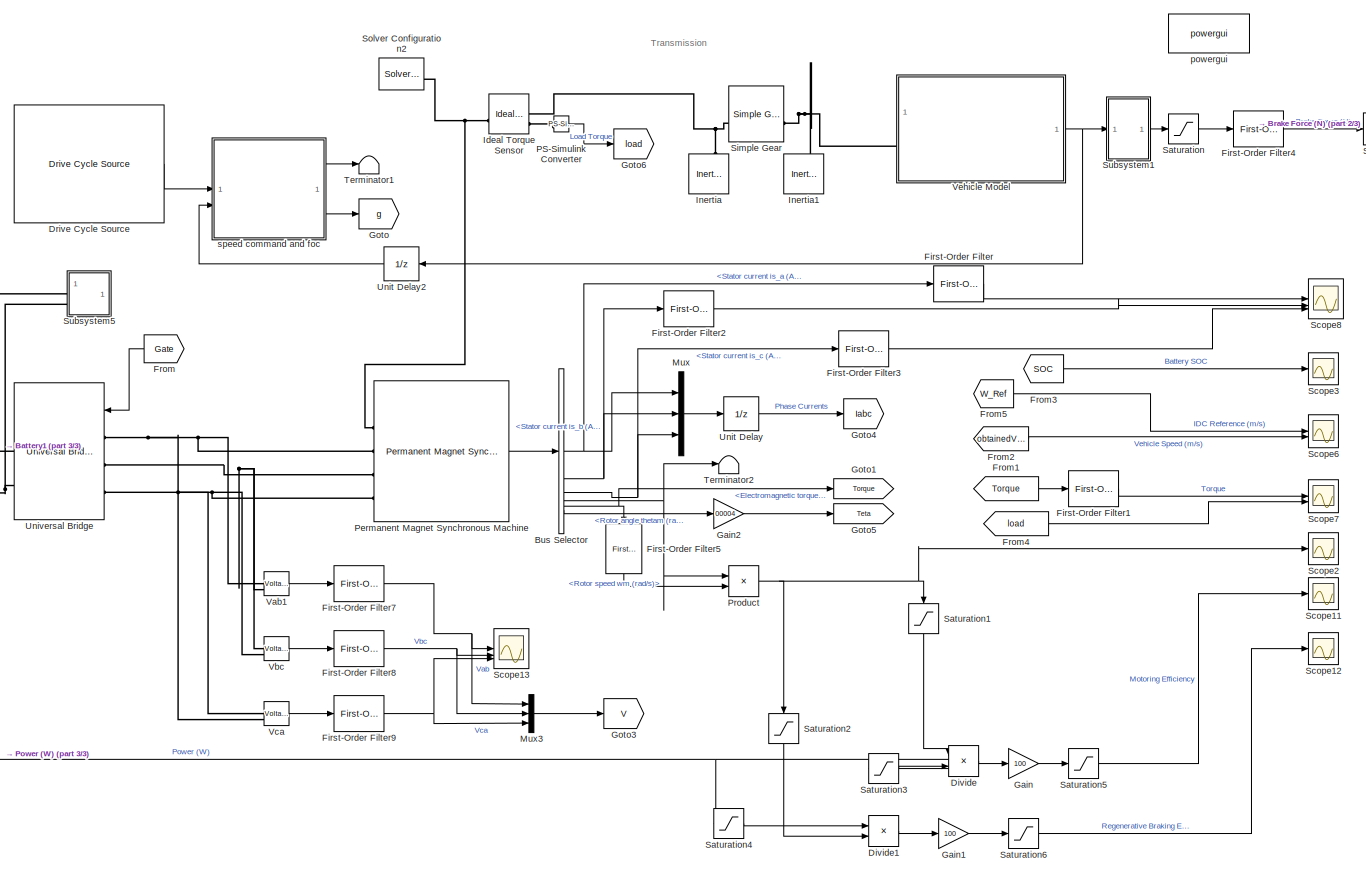
[diagram: root canvas - part 1/3, center side, full height]
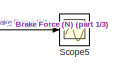
[diagram: root canvas - part 2/3, top right region]
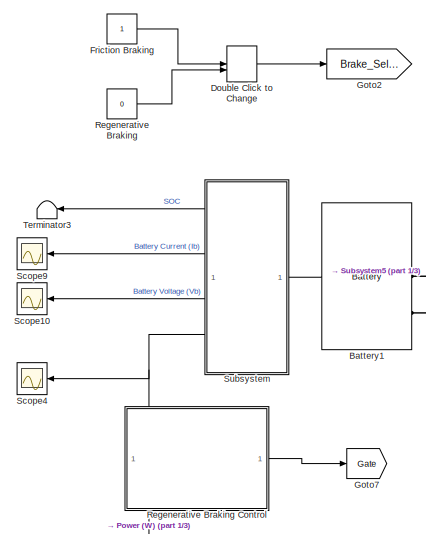
[diagram: root canvas - part 3/3, middle left region]
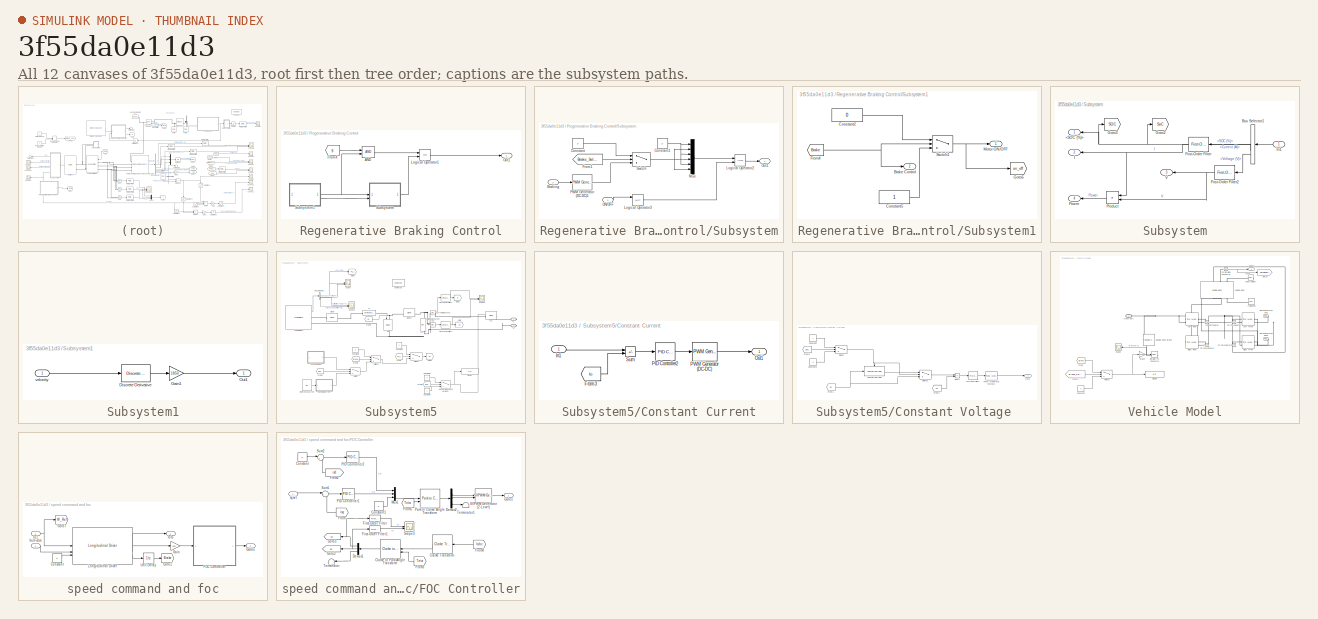
[diagram: thumbnail index - all 12 canvases of the model, root first then tree order]
MODEL slx_3f55da0e11d3
KIND model
CONFIG AbsTol = auto
CONFIG EnableMultiTasking = off
CONFIG FixedStep = auto
CONFIG MaxStep = auto
CONFIG MinStep = auto
CONFIG RelTol = 1e-3
CONFIG SampleTimeConstraint = Unconstrained
CONFIG SolverName = VariableStepAuto
CONFIG StartTime = 0.0
CONFIG StopTime = 135
BLOCK [Reference] Battery1  REF=spsBatteryLib/Battery
  SourceBlock = spsBatteryLib/Battery
  SourceType = Battery
BLOCK [BusSelector] Bus Selector
  OutputSignals = Stator current is_a (A),Stator current is_b (A),Stator current is_c (A),Rotor speed wm (rad/s),Electromagnetic torque Te (N*m),Rotor angle thetam (rad)
BLOCK [Product] Divide
  Inputs = */
BLOCK [Product] Divide1
  Inputs = */
BLOCK [ManualSwitch] Double Click to Change
BLOCK [Reference] Drive Cycle Source  REF=autolibshared/Drive Cycle Source
  AttributesFormatString = %<cycleVar> (%<tfinal>)
  LibrarySourceBlock = autolibscenario/Drive Cycle Source
  SourceBlock = autolibshared/Drive Cycle Source
  SourceType = Drive Cycle Source
BLOCK [Reference] First-Order Filter  REF=spsFirstOrderFilterLib/First-Order
Filter
  LibrarySourceBlock = sps_lib/Control/Filters/First-Order\nFilter
  SourceBlock = spsFirstOrderFilterLib/First-Order\nFilter
  SourceType = First-Order Filter
BLOCK [Reference] First-Order Filter1  REF=spsFirstOrderFilterLib/First-Order
Filter
  SourceBlock = spsFirstOrderFilterLib/First-Order\nFilter
  SourceType = First-Order Filter
BLOCK [Reference] First-Order Filter2  REF=spsFirstOrderFilterLib/First-Order
Filter
  LibrarySourceBlock = sps_lib/Control/Filters/First-Order\nFilter
  SourceBlock = spsFirstOrderFilterLib/First-Order\nFilter
  SourceType = First-Order Filter
BLOCK [Reference] First-Order Filter3  REF=spsFirstOrderFilterLib/First-Order
Filter
  LibrarySourceBlock = sps_lib/Control/Filters/First-Order\nFilter
  SourceBlock = spsFirstOrderFilterLib/First-Order\nFilter
  SourceType = First-Order Filter
BLOCK [Reference] First-Order Filter4  REF=spsFirstOrderFilterLib/First-Order
Filter
  LibrarySourceBlock = sps_lib/Control/Filters/First-Order\nFilter
  SourceBlock = spsFirstOrderFilterLib/First-Order\nFilter
  SourceType = First-Order Filter
BLOCK [Reference] First-Order Filter5  REF=spsFirstOrderFilterLib/First-Order
Filter
  LibrarySourceBlock = sps_lib/Control/Filters/First-Order\nFilter
  NameLocation = left
  SourceBlock = spsFirstOrderFilterLib/First-Order\nFilter
  SourceType = First-Order Filter
BLOCK [Reference] First-Order Filter7  REF=spsFirstOrderFilterLib/First-Order
Filter
  LibrarySourceBlock = sps_lib/Control/Filters/First-Order\nFilter
  SourceBlock = spsFirstOrderFilterLib/First-Order\nFilter
  SourceType = First-Order Filter
BLOCK [Reference] First-Order Filter8  REF=spsFirstOrderFilterLib/First-Order
Filter
  LibrarySourceBlock = sps_lib/Control/Filters/First-Order\nFilter
  SourceBlock = spsFirstOrderFilterLib/First-Order\nFilter
  SourceType = First-Order Filter
BLOCK [Reference] First-Order Filter9  REF=spsFirstOrderFilterLib/First-Order
Filter
  LibrarySourceBlock = sps_lib/Control/Filters/First-Order\nFilter
  SourceBlock = spsFirstOrderFilterLib/First-Order\nFilter
  SourceType = First-Order Filter
BLOCK [Constant] Friction Braking
BLOCK [From] From
  GotoTag = Gate
  TagVisibility = global
BLOCK [From] From1
  GotoTag = Torque
  TagVisibility = global
BLOCK [From] From2
  GotoTag = obtainedVel
  TagVisibility = global
BLOCK [From] From3
  GotoTag = SOC
  TagVisibility = global
BLOCK [From] From4
  GotoTag = load
BLOCK [From] From5
  GotoTag = W_Ref
  TagVisibility = global
BLOCK [Gain] Gain
  Gain = 100
BLOCK [Gain] Gain1
  Gain = 100
BLOCK [Gain] Gain2
  Gain = 00004
BLOCK [Goto] Goto
  GotoTag = g
  TagVisibility = global
BLOCK [Goto] Goto1
  GotoTag = Torque
  TagVisibility = global
BLOCK [Goto] Goto2
  GotoTag = Brake_Selector
  TagVisibility = global
BLOCK [Goto] Goto3
  GotoTag = V
  NameLocation = top
  TagVisibility = global
BLOCK [Goto] Goto4
  GotoTag = Iabc
  TagVisibility = global
BLOCK [Goto] Goto5
  GotoTag = Teta
  TagVisibility = global
BLOCK [Goto] Goto6
  GotoTag = load
BLOCK [Goto] Goto7
  GotoTag = Gate
  TagVisibility = global
BLOCK [Reference] Ideal Torque Sensor  REF=fl_lib/Mechanical/Mechanical Sensors/Ideal Torque Sensor
  SourceBlock = fl_lib/Mechanical/Mechanical Sensors/Ideal Torque Sensor
  SourceType = Ideal Torque Sensor
BLOCK [Reference] Inertia  REF=fl_lib/Mechanical/Rotational Elements/Inertia
  NameLocation = right
  SourceBlock = fl_lib/Mechanical/Rotational Elements/Inertia
  SourceType = Inertia
BLOCK [Reference] Inertia1  REF=fl_lib/Mechanical/Rotational Elements/Inertia
  NameLocation = right
  SourceBlock = fl_lib/Mechanical/Rotational Elements/Inertia
  SourceType = Inertia
BLOCK [Mux] Mux
  DisplayOption = bar
  Inputs = 3
BLOCK [Mux] Mux3
  DisplayOption = bar
  Inputs = 3
BLOCK [Reference] PS-Simulink Converter  REF=nesl_utility/PS-Simulink
Converter
  SourceBlock = nesl_utility/PS-Simulink\nConverter
  SourceType = PS-Simulink\nConverter
BLOCK [Reference] Permanent Magnet Synchronous Machine  REF=spsPermanentMagnetSynchronousMachineLib/Permanent Magnet
Synchronous Machine
  SourceBlock = spsPermanentMagnetSynchronousMachineLib/Permanent Magnet\nSynchronous Machine
  SourceType = Permanent Magnet Synchronous Machine
BLOCK [Product] Product
BLOCK [Constant] Regenerative Braking
  Value = 0
BLOCK [SubSystem] Regenerative Braking Control
BLOCK [Logic] Regenerative Braking Control/AND
  AllPortsSameDT = off
  IconShape = distinctive
  OutDataTypeStr = boolean
BLOCK [From] Regenerative Braking Control/From4
  GotoTag = g
  TagVisibility = global
BLOCK [Logic] Regenerative Braking Control/Logical Operator1
  AllPortsSameDT = off
  Operator = OR
  OutDataTypeStr = boolean
BLOCK [Outport] Regenerative Braking Control/Out1
BLOCK [SubSystem] Regenerative Braking Control/Subsystem
BLOCK [Inport] Regenerative Braking Control/Subsystem/Braking
  NameLocation = top
  Port = 2
BLOCK [Constant] Regenerative Braking Control/Subsystem/Constant
  Value = 0
BLOCK [Constant] Regenerative Braking Control/Subsystem/Constant1
  Value = 0
BLOCK [From] Regenerative Braking Control/Subsystem/From1
  GotoTag = Brake_Selector
  TagVisibility = global
BLOCK [Logic] Regenerative Braking Control/Subsystem/Logical Operator2
  AllPortsSameDT = off
  OutDataTypeStr = boolean
BLOCK [Logic] Regenerative Braking Control/Subsystem/Logical Operator3
  AllPortsSameDT = off
  Inputs = 3
  Operator = NOT
  OutDataTypeStr = boolean
BLOCK [Mux] Regenerative Braking Control/Subsystem/Mux
  DisplayOption = bar
  Inputs = 6
BLOCK [Inport] Regenerative Braking Control/Subsystem/ON//OFF
  NameLocation = top
BLOCK [Outport] Regenerative Braking Control/Subsystem/Out1
BLOCK [Reference] Regenerative Braking Control/Subsystem/PWM Generator (DC-DC)1  REF=spsPWMGeneratorDCDCLib/PWM Generator
(DC-DC)
  LibrarySourceBlock = sps_lib/Power Electronics/Power Electronics Control/PWM Generator\n(DC-DC)
  SourceBlock = spsPWMGeneratorDCDCLib/PWM Generator\n(DC-DC)
  SourceType = PWM Generator (DC-DC)
BLOCK [Switch] Regenerative Braking Control/Subsystem/Switch
  Criteria = u2 > Threshold
  InputSameDT = off
  SaturateOnIntegerOverflow = off
BLOCK [SubSystem] Regenerative Braking Control/Subsystem1
BLOCK [Outport] Regenerative Braking Control/Subsystem1/Brake Control
  Port = 2
  VectorParamsAs1DForOutWhenUnconnected = off
BLOCK [Constant] Regenerative Braking Control/Subsystem1/Constant2
  Value = 0
BLOCK [Constant] Regenerative Braking Control/Subsystem1/Constant5
BLOCK [From] Regenerative Braking Control/Subsystem1/From4
  GotoTag = Brake
  TagVisibility = global
BLOCK [Goto] Regenerative Braking Control/Subsystem1/Goto6
  GotoTag = on_off
  NameLocation = top
  TagVisibility = global
BLOCK [Outport] Regenerative Braking Control/Subsystem1/Motor ON//OFF
  VectorParamsAs1DForOutWhenUnconnected = off
BLOCK [Switch] Regenerative Braking Control/Subsystem1/Switch1
  Criteria = u2 > Threshold
  InputSameDT = off
  SaturateOnIntegerOverflow = off
BLOCK [Saturate] Saturation
  LowerLimit = -10000
  UpperLimit = 0
BLOCK [Saturate] Saturation1
  LowerLimit = 0
  NameLocation = left
  UpperLimit = inf
BLOCK [Saturate] Saturation2
  LowerLimit = -inf
  NameLocation = left
  UpperLimit = 0
BLOCK [Saturate] Saturation3
  LowerLimit = 0
  UpperLimit = inf
BLOCK [Saturate] Saturation4
  LowerLimit = -inf
  UpperLimit = 0
BLOCK [Saturate] Saturation5
  LowerLimit = 0
  UpperLimit = 97.6
BLOCK [Saturate] Saturation6
  LowerLimit = 0
  UpperLimit = 98
BLOCK [Scope] Scope10
  Floating = off
  NumInputPorts = 1
  ScopeSpecificationString = Simulink.scopes.TimeScopeBlockCfg('CurrentConfiguration', extmgr.ConfigurationSet(extmgr.Configuration('Core','General UI',true,'FigureColor',[1 1 1]),extmgr.Configuration('Core','Source UI',true),extmgr.Configuration('Sources','WiredSimulink',true,'DataLoggingVariableName','ScopeData8','SampleTime','0.001'),extmgr.Configuration('Visuals','Time Domain',true,'SerializedDisplays',{struct('MinYLimRea...<+1677ch>
BLOCK [Scope] Scope11
  Floating = off
  NameLocation = top
  NumInputPorts = 1
  ScopeSpecificationString = Simulink.scopes.TimeScopeBlockCfg('CurrentConfiguration', extmgr.ConfigurationSet(extmgr.Configuration('Core','General UI',true,'FigureColor',[1 1 1]),extmgr.Configuration('Core','Source UI',true),extmgr.Configuration('Sources','WiredSimulink',true,'DataLoggingVariableName','ScopeData2','SampleTime','0.001'),extmgr.Configuration('Visuals','Time Domain',true,'SerializedDisplays',{struct('MinYLimRea...<+1686ch>
BLOCK [Scope] Scope12
  Floating = off
  NameLocation = top
  NumInputPorts = 1
  ScopeSpecificationString = Simulink.scopes.TimeScopeBlockCfg('CurrentConfiguration', extmgr.ConfigurationSet(extmgr.Configuration('Core','General UI',true,'FigureColor',[1 1 1]),extmgr.Configuration('Core','Source UI',true),extmgr.Configuration('Sources','WiredSimulink',true,'DataLoggingVariableName','ScopeData3','SampleTime','0.001'),extmgr.Configuration('Visuals','Time Domain',true,'SerializedDisplays',{struct('MinYLimRea...<+1688ch>
BLOCK [Scope] Scope13
  Floating = off
  NumInputPorts = 3
  ScopeSpecificationString = Simulink.scopes.TimeScopeBlockCfg('CurrentConfiguration', extmgr.ConfigurationSet(extmgr.Configuration('Core','General UI',true,'FigureColor',[1 1 1]),extmgr.Configuration('Core','Source UI',true),extmgr.Configuration('Sources','WiredSimulink',true,'DataLoggingVariableName','ScopeData1','SampleTime','0.001'),extmgr.Configuration('Visuals','Time Domain',true,'SerializedDisplays',{struct('MinYLimRea...<+3131ch>
BLOCK [Scope] Scope2
  Floating = off
  NameLocation = top
  NumInputPorts = 1
  ScopeSpecificationString = Simulink.scopes.TimeScopeBlockCfg('CurrentConfiguration', extmgr.ConfigurationSet(extmgr.Configuration('Core','General UI',true,'FigureColor',[1 1 1]),extmgr.Configuration('Core','Source UI',true),extmgr.Configuration('Sources','WiredSimulink',true,'DataLoggingVariableName','ScopeData1','SampleTime','0.001'),extmgr.Configuration('Visuals','Time Domain',true,'SerializedDisplays',{struct('MinYLimRea...<+1605ch>
BLOCK [Scope] Scope3
  Floating = off
  NumInputPorts = 1
  ScopeSpecificationString = Simulink.scopes.TimeScopeBlockCfg('CurrentConfiguration', extmgr.ConfigurationSet(extmgr.Configuration('Core','General UI',true,'FigureColor',[1 1 1]),extmgr.Configuration('Core','Source UI',true),extmgr.Configuration('Sources','WiredSimulink',true,'DataLoggingVariableName','ScopeData2','SampleTime','0.001'),extmgr.Configuration('Visuals','Time Domain',true,'SerializedDisplays',{struct('MinYLimRea...<+1645ch>
BLOCK [Scope] Scope4
  Floating = off
  NumInputPorts = 1
  ScopeSpecificationString = Simulink.scopes.TimeScopeBlockCfg('CurrentConfiguration', extmgr.ConfigurationSet(extmgr.Configuration('Core','General UI',true,'FigureColor',[1 1 1]),extmgr.Configuration('Core','Source UI',true),extmgr.Configuration('Sources','WiredSimulink',true,'DataLoggingVariableName','ScopeData2'),extmgr.Configuration('Visuals','Time Domain',true,'SerializedDisplays',{struct('MinYLimReal','-11069.70452','Ma...<+1606ch>
BLOCK [Scope] Scope5
  Floating = off
  NumInputPorts = 1
  ScopeSpecificationString = Simulink.scopes.TimeScopeBlockCfg('CurrentConfiguration', extmgr.ConfigurationSet(extmgr.Configuration('Core','General UI',true,'FigureColor',[1 1 1]),extmgr.Configuration('Core','Source UI',true),extmgr.Configuration('Sources','WiredSimulink',true,'DataLoggingVariableName','ScopeData1','SampleTime','0.001'),extmgr.Configuration('Visuals','Time Domain',true,'SerializedDisplays',{struct('MinYLimRea...<+1601ch>
BLOCK [Scope] Scope6
  Floating = off
  NumInputPorts = 2
  ScopeSpecificationString = Simulink.scopes.TimeScopeBlockCfg('CurrentConfiguration', extmgr.ConfigurationSet(extmgr.Configuration('Core','General UI',true,'FigureColor',[1 1 1]),extmgr.Configuration('Core','Source UI',true),extmgr.Configuration('Sources','WiredSimulink',true,'DataLoggingVariableName','ScopeData3','SampleTime','0.001'),extmgr.Configuration('Visuals','Time Domain',true,'SerializedDisplays',{struct('MinYLimRea...<+1781ch>
BLOCK [Scope] Scope7
  Floating = off
  NumInputPorts = 2
  ScopeSpecificationString = Simulink.scopes.TimeScopeBlockCfg('CurrentConfiguration', extmgr.ConfigurationSet(extmgr.Configuration('Core','General UI',true,'FigureColor',[1 1 1]),extmgr.Configuration('Core','Source UI',true),extmgr.Configuration('Sources','WiredSimulink',true,'DataLoggingVariableName','ScopeData4','SampleTime','0.001'),extmgr.Configuration('Visuals','Time Domain',true,'SerializedDisplays',{struct('MinYLimRea...<+2501ch>
BLOCK [Scope] Scope8
  Floating = off
  NumInputPorts = 3
  ScopeSpecificationString = Simulink.scopes.TimeScopeBlockCfg('CurrentConfiguration', extmgr.ConfigurationSet(extmgr.Configuration('Core','General UI',true,'FigureColor',[1 1 1]),extmgr.Configuration('Core','Source UI',true),extmgr.Configuration('Sources','WiredSimulink',true,'DataLoggingVariableName','ScopeData5','SampleTime','0.001'),extmgr.Configuration('Visuals','Time Domain',true,'SerializedDisplays',{struct('MinYLimRea...<+3165ch>
BLOCK [Scope] Scope9
  Floating = off
  NumInputPorts = 1
  ScopeSpecificationString = Simulink.scopes.TimeScopeBlockCfg('CurrentConfiguration', extmgr.ConfigurationSet(extmgr.Configuration('Core','General UI',true,'FigureColor',[1 1 1]),extmgr.Configuration('Core','Source UI',true),extmgr.Configuration('Sources','WiredSimulink',true,'DataLoggingVariableName','ScopeData1','SampleTime','0.001'),extmgr.Configuration('Visuals','Time Domain',true,'SerializedDisplays',{struct('MinYLimRea...<+1687ch>
BLOCK [Reference] Simple Gear  REF=sdl_lib/Gears/Simple Gear
  SourceBlock = sdl_lib/Gears/Simple Gear
  SourceType = Simple Gear
BLOCK [Reference] Solver Configuration2  REF=nesl_utility/Solver
Configuration
  SourceBlock = nesl_utility/Solver\nConfiguration
  SourceType = Solver\nConfiguration
BLOCK [SubSystem] Subsystem
  PortSchema = {"entries":[{"content":{"sides":[{"content":{"connectorIds":["Out1","Out2","Out3","Out4"]},"type":"ConnectorPlacement.EquallySpacedRectSide","uuid":"27c1b33d-e0e1-4e5c-8dd4-1ab97e6f711d"},{"content":{"connectorIds":["In1"],"side":"RIGHT"},"type":"ConnectorPlacement.EquallySpacedRectSide","uuid":"f667a61e-e82c-43f5-b62b-8aef73abd33b"},{"content":{"connectorIds":[],"side":"TOP"},"type":"ConnectorPla...<+261ch>
BLOCK [Outport] Subsystem/<SOC (%)>
BLOCK [BusSelector] Subsystem/Bus Selector1
  OutputSignals = SOC (%),Current (A),Voltage (V)
BLOCK [Reference] Subsystem/First-Order Filter  REF=spsFirstOrderFilterLib/First-Order
Filter
  SourceBlock = spsFirstOrderFilterLib/First-Order\nFilter
  SourceType = First-Order Filter
BLOCK [Reference] Subsystem/First-Order Filter2  REF=spsFirstOrderFilterLib/First-Order
Filter
  SourceBlock = spsFirstOrderFilterLib/First-Order\nFilter
  SourceType = First-Order Filter
BLOCK [Goto] Subsystem/Goto2
  GotoTag = SoC
  TagVisibility = global
BLOCK [Goto] Subsystem/Goto3
  GotoTag = SOC
  NameLocation = top
  TagVisibility = global
BLOCK [Outport] Subsystem/I
  Port = 2
BLOCK [Inport] Subsystem/In1
BLOCK [Outport] Subsystem/Power
  Port = 4
BLOCK [Product] Subsystem/Product
BLOCK [Outport] Subsystem/V
  Port = 3
BLOCK [SubSystem] Subsystem1
BLOCK [Reference] Subsystem1/Discrete Derivative  REF=simulink/Discrete/Discrete Derivative
  SourceBlock = simulink/Discrete/Discrete Derivative
  SourceType = Discrete Derivative
BLOCK [Gain] Subsystem1/Gain1
  Gain = 1850
BLOCK [Outport] Subsystem1/Out1
BLOCK [Inport] Subsystem1/velocity
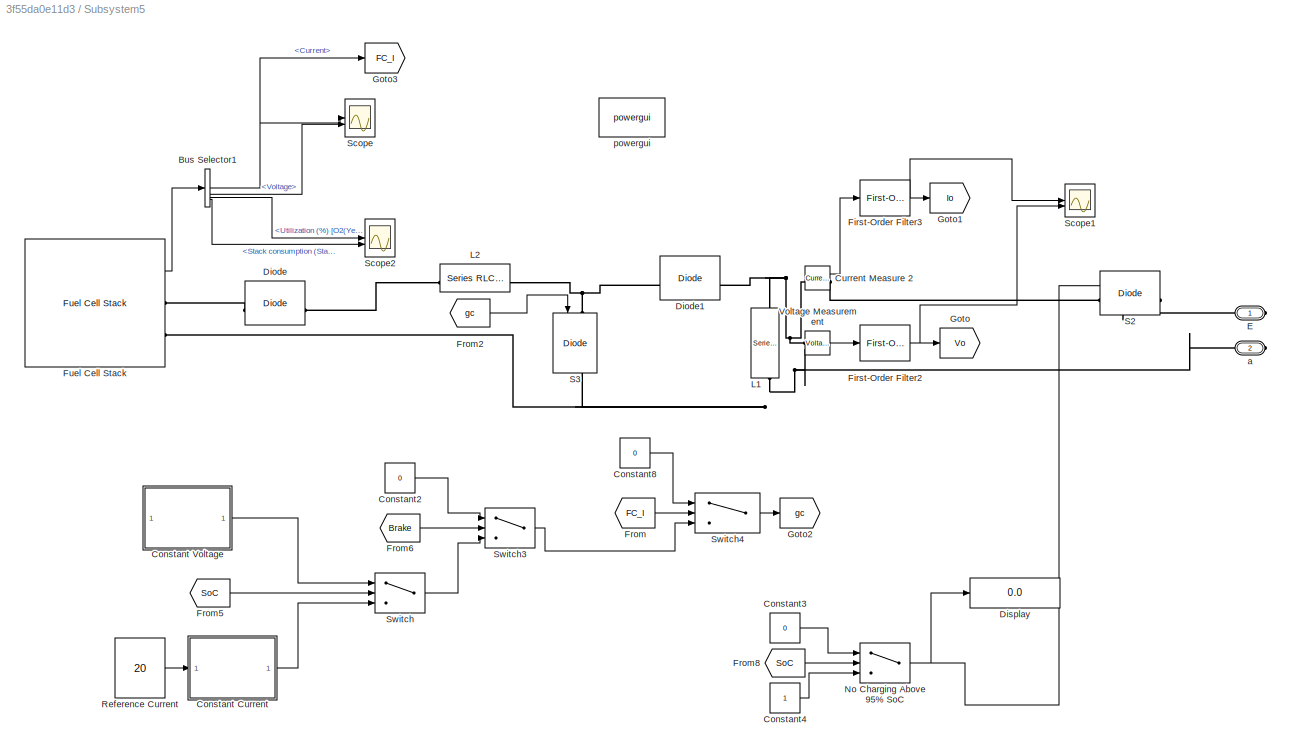
BLOCK [SubSystem] Subsystem5
BLOCK [BusSelector] Subsystem5/Bus Selector1
  OutputSignals = Current,Voltage,Utilization (%) [O2(Yellow); H2(Magenta)],Stack consumption (Standard lpm) [Air(Yellow); Fuel(Magenta)]
BLOCK [SubSystem] Subsystem5/Constant Current
BLOCK [From] Subsystem5/Constant Current/From3
  GotoTag = Io
  TagVisibility = global
BLOCK [Inport] Subsystem5/Constant Current/In1
BLOCK [Outport] Subsystem5/Constant Current/Out1
  VectorParamsAs1DForOutWhenUnconnected = off
BLOCK [Reference] Subsystem5/Constant Current/PID Controller2  REF=slpidlib/PID Controller
  SourceBlock = slpidlib/PID Controller
  SourceType = PID 1dof
BLOCK [Reference] Subsystem5/Constant Current/PWM Generator (DC-DC)  REF=spsPWMGeneratorDCDCLib/PWM Generator
(DC-DC)
  SourceBlock = spsPWMGeneratorDCDCLib/PWM Generator\n(DC-DC)
  SourceType = PWM Generator (DC-DC)
BLOCK [Sum] Subsystem5/Constant Current/Sum
  IconShape = rectangular
  Inputs = +-
BLOCK [SubSystem] Subsystem5/Constant Voltage 
BLOCK [Constant] Subsystem5/Constant Voltage /Constant
BLOCK [Constant] Subsystem5/Constant Voltage /Constant2
  Value = 0
BLOCK [From] Subsystem5/Constant Voltage /From1
  GotoTag = Vo
  TagVisibility = global
BLOCK [From] Subsystem5/Constant Voltage /From2
  GotoTag = SoC
  TagVisibility = global
BLOCK [From] Subsystem5/Constant Voltage /From4
  GotoTag = Vo
  TagVisibility = global
BLOCK [Outport] Subsystem5/Constant Voltage /Out1
  VectorParamsAs1DForOutWhenUnconnected = off
BLOCK [Reference] Subsystem5/Constant Voltage /PID Controller1  REF=slpidlib/PID Controller
  SourceBlock = slpidlib/PID Controller
  SourceType = PID 1dof
BLOCK [Reference] Subsystem5/Constant Voltage /PWM Generator (DC-DC)1  REF=spsPWMGeneratorDCDCLib/PWM Generator
(DC-DC)
  SourceBlock = spsPWMGeneratorDCDCLib/PWM Generator\n(DC-DC)
  SourceType = PWM Generator (DC-DC)
BLOCK [Reference] Subsystem5/Constant Voltage /Sample and Hold  REF=dspsigops/Sample
and Hold
  SourceBlock = dspsigops/Sample\nand Hold
  SourceType = Sample and Hold
BLOCK [Sum] Subsystem5/Constant Voltage /Sum1
  IconShape = rectangular
  Inputs = +-
BLOCK [Switch] Subsystem5/Constant Voltage /Switch
  Criteria = u2 > Threshold
  InputSameDT = off
  SaturateOnIntegerOverflow = off
  Threshold = 90
BLOCK [Switch] Subsystem5/Constant Voltage /Switch1
  Criteria = u2 > Threshold
  InputSameDT = off
  SaturateOnIntegerOverflow = off
BLOCK [Constant] Subsystem5/Constant2
  Value = 0
BLOCK [Constant] Subsystem5/Constant3
  Value = 0
BLOCK [Constant] Subsystem5/Constant4
BLOCK [Constant] Subsystem5/Constant8
  Value = 0
BLOCK [Reference] Subsystem5/Current Measure 2  REF=spsCurrentMeasurementLib/Current Measurement
  SourceBlock = spsCurrentMeasurementLib/Current Measurement
  SourceType = Current Measurement
BLOCK [Reference] Subsystem5/Diode  REF=spsDiodeLib/Diode
  LibrarySourceBlock = sps_lib/Power Electronics/Diode
  SourceBlock = spsDiodeLib/Diode
  SourceType = Diode
BLOCK [Reference] Subsystem5/Diode1  REF=spsDiodeLib/Diode
  LibrarySourceBlock = sps_lib/Power Electronics/Diode
  SourceBlock = spsDiodeLib/Diode
  SourceType = Diode
BLOCK [Display] Subsystem5/Display
  Decimation = 1
BLOCK [PMIOPort] Subsystem5/E
  Side = Right
BLOCK [Reference] Subsystem5/First-Order Filter2  REF=spsFirstOrderFilterLib/First-Order
Filter
  SourceBlock = spsFirstOrderFilterLib/First-Order\nFilter
  SourceType = First-Order Filter
BLOCK [Reference] Subsystem5/First-Order Filter3  REF=spsFirstOrderFilterLib/First-Order
Filter
  SourceBlock = spsFirstOrderFilterLib/First-Order\nFilter
  SourceType = First-Order Filter
BLOCK [From] Subsystem5/From
  GotoTag = FC_I
  TagVisibility = global
BLOCK [From] Subsystem5/From2
  GotoTag = gc
  TagVisibility = global
BLOCK [From] Subsystem5/From5
  GotoTag = SoC
  TagVisibility = global
BLOCK [From] Subsystem5/From6
  GotoTag = Brake
  TagVisibility = global
BLOCK [From] Subsystem5/From8
  GotoTag = SoC
  TagVisibility = global
BLOCK [Reference] Subsystem5/Fuel Cell Stack  REF=spsFuelCellStackLib/Fuel Cell Stack
  LibrarySourceBlock = sps_lib/Sources/Fuel Cell Stack
  SourceBlock = spsFuelCellStackLib/Fuel Cell Stack
  SourceType = Fuel Cell Stack
BLOCK [Goto] Subsystem5/Goto
  GotoTag = Vo
  TagVisibility = global
BLOCK [Goto] Subsystem5/Goto1
  GotoTag = Io
  TagVisibility = global
BLOCK [Goto] Subsystem5/Goto2
  GotoTag = gc
  TagVisibility = global
BLOCK [Goto] Subsystem5/Goto3
  GotoTag = FC_I
  TagVisibility = global
BLOCK [Reference] Subsystem5/L1  REF=spsSeriesRLCBranchLib/Series RLC Branch
  NameLocation = left
  SourceBlock = spsSeriesRLCBranchLib/Series RLC Branch
  SourceType = Series RLC Branch
BLOCK [Reference] Subsystem5/L2  REF=spsSeriesRLCBranchLib/Series RLC Branch
  SourceBlock = spsSeriesRLCBranchLib/Series RLC Branch
  SourceType = Series RLC Branch
BLOCK [Switch] Subsystem5/No Charging Above 95% SoC
  Criteria = u2 > Threshold
  InputSameDT = off
  SaturateOnIntegerOverflow = off
  Threshold = 95
BLOCK [Constant] Subsystem5/Reference Current
  Value = 20
BLOCK [Reference] Subsystem5/S2  REF=spsIGBTDiodeLib/IGBT//Diode
  SourceBlock = spsIGBTDiodeLib/IGBT//Diode
  SourceType = IGBT/Diode
BLOCK [Reference] Subsystem5/S3  REF=spsIGBTDiodeLib/IGBT//Diode
  NameLocation = left
  SourceBlock = spsIGBTDiodeLib/IGBT//Diode
  SourceType = IGBT/Diode
BLOCK [Scope] Subsystem5/Scope
  Floating = off
  NumInputPorts = 2
  ScopeSpecificationString = Simulink.scopes.TimeScopeBlockCfg('CurrentConfiguration', extmgr.ConfigurationSet(extmgr.Configuration('Core','General UI',true),extmgr.Configuration('Core','Source UI',true),extmgr.Configuration('Sources','WiredSimulink',true,'DataLoggingVariableName','ScopeData1','SampleTime','0.001'),extmgr.Configuration('Visuals','Time Domain',true,'SerializedDisplays',{struct('MinYLimReal','-50.43701','MaxYLi...<+2016ch>
BLOCK [Scope] Subsystem5/Scope1
  Floating = off
  NumInputPorts = 2
  ScopeSpecificationString = Simulink.scopes.TimeScopeBlockCfg('CurrentConfiguration', extmgr.ConfigurationSet(extmgr.Configuration('Core','General UI',true),extmgr.Configuration('Core','Source UI',true),extmgr.Configuration('Sources','WiredSimulink',true,'DataLoggingVariableName','ScopeData1','SampleTime','0.001'),extmgr.Configuration('Visuals','Time Domain',true,'SerializedDisplays',{struct('MinYLimReal','-21.1211','MaxYLim...<+2025ch>
BLOCK [Scope] Subsystem5/Scope2
  Floating = off
  NumInputPorts = 2
  ScopeSpecificationString = Simulink.scopes.TimeScopeBlockCfg('CurrentConfiguration', extmgr.ConfigurationSet(extmgr.Configuration('Core','General UI',true),extmgr.Configuration('Core','Source UI',true),extmgr.Configuration('Sources','WiredSimulink',true,'DataLoggingVariableName','ScopeData1','SampleTime','0.001'),extmgr.Configuration('Visuals','Time Domain',true,'SerializedDisplays',{struct('MinYLimReal','-50.43701','MaxYLi...<+2009ch>
BLOCK [Switch] Subsystem5/Switch
  Criteria = u2 > Threshold
  InputSameDT = off
  SaturateOnIntegerOverflow = off
  Threshold = 90
BLOCK [Switch] Subsystem5/Switch3
  Criteria = u2 > Threshold
  InputSameDT = off
  SaturateOnIntegerOverflow = off
BLOCK [Switch] Subsystem5/Switch4
  Criteria = u2 > Threshold
  InputSameDT = off
  SaturateOnIntegerOverflow = off
  Threshold = 400
BLOCK [Reference] Subsystem5/Voltage Measurement  REF=spsVoltageMeasurementLib/Voltage Measurement
  SourceBlock = spsVoltageMeasurementLib/Voltage Measurement
  SourceType = Voltage Measurement
  UserDataPersistent = on
BLOCK [PMIOPort] Subsystem5/a
  Port = 2
  Side = Right
BLOCK [Reference] Subsystem5/powergui  REF=spspowerguiLib/powergui
  Priority = 1
  SourceBlock = spspowerguiLib/powergui
  SourceType = PSB option menu block
BLOCK [Terminator] Terminator1
  NameLocation = top
BLOCK [Terminator] Terminator2
  NameLocation = top
BLOCK [Terminator] Terminator3
  NameLocation = top
BLOCK [UnitDelay] Unit Delay
  HasFrameUpgradeWarning = on
  SampleTime = -1
BLOCK [UnitDelay] Unit Delay2
  HasFrameUpgradeWarning = on
  SampleTime = -1
BLOCK [Reference] Universal Bridge  REF=spsUniversalBridgeLib/Universal Bridge
  SourceBlock = spsUniversalBridgeLib/Universal Bridge
  SourceType = Universal Bridge
BLOCK [Reference] Vab1  REF=spsVoltageMeasurementLib/Voltage Measurement
  SourceBlock = spsVoltageMeasurementLib/Voltage Measurement
  SourceType = Voltage Measurement
  UserDataPersistent = on
BLOCK [Reference] Vbc  REF=spsVoltageMeasurementLib/Voltage Measurement
  SourceBlock = spsVoltageMeasurementLib/Voltage Measurement
  SourceType = Voltage Measurement
  UserDataPersistent = on
BLOCK [Reference] Vca  REF=spsVoltageMeasurementLib/Voltage Measurement
  SourceBlock = spsVoltageMeasurementLib/Voltage Measurement
  SourceType = Voltage Measurement
  UserDataPersistent = on
BLOCK [SubSystem] Vehicle Model
BLOCK [Gain] Vehicle Model/Brake
  Gain = 10000
  NameLocation = top
BLOCK [Constant] Vehicle Model/Constant
  Value = 0
BLOCK [Display] Vehicle Model/Display
  Decimation = 1
BLOCK [Reference] Vehicle Model/Double-Shoe Brake  REF=sdl_lib/Brakes & Detents/Rotational/Double-Shoe Brake
  SourceBlock = sdl_lib/Brakes & Detents/Rotational/Double-Shoe Brake
  SourceType = Double-Shoe Brake
BLOCK [From] Vehicle Model/From
  GotoTag = Brake
  TagVisibility = global
BLOCK [From] Vehicle Model/From1
  GotoTag = Brake_Selector
  TagVisibility = global
BLOCK [Goto] Vehicle Model/Goto1
  GotoTag = obtainedVel
  TagVisibility = global
BLOCK [Reference] Vehicle Model/Inclination  REF=fl_lib/Physical Signals/Sources/PS Constant
  SourceBlock = fl_lib/Physical Signals/Sources/PS Constant
  SourceType = PS Constant
BLOCK [Reference] Vehicle Model/Left Front  REF=sdl_lib/Tires & Vehicles/Tire (Magic Formula)
  NameLocation = top
  SourceBlock = sdl_lib/Tires & Vehicles/Tire (Magic Formula)
  SourceType = Tire (Magic Formula)
BLOCK [Reference] Vehicle Model/Left Rear  REF=sdl_lib/Tires & Vehicles/Tire (Magic Formula)
  SourceBlock = sdl_lib/Tires & Vehicles/Tire (Magic Formula)
  SourceType = Tire (Magic Formula)
BLOCK [Reference] Vehicle Model/PS Terminator  REF=fl_lib/Physical Signals/Sinks/PS Terminator
  SourceBlock = fl_lib/Physical Signals/Sinks/PS Terminator
  SourceType = PS Terminator
BLOCK [Reference] Vehicle Model/PS Terminator1  REF=fl_lib/Physical Signals/Sinks/PS Terminator
  SourceBlock = fl_lib/Physical Signals/Sinks/PS Terminator
  SourceType = PS Terminator
BLOCK [Reference] Vehicle Model/PS Terminator2  REF=fl_lib/Physical Signals/Sinks/PS Terminator
  NameLocation = top
  SourceBlock = fl_lib/Physical Signals/Sinks/PS Terminator
  SourceType = PS Terminator
BLOCK [Reference] Vehicle Model/PS Terminator3  REF=fl_lib/Physical Signals/Sinks/PS Terminator
  NameLocation = top
  SourceBlock = fl_lib/Physical Signals/Sinks/PS Terminator
  SourceType = PS Terminator
BLOCK [Reference] Vehicle Model/PS-Simulink Converter  REF=nesl_utility/PS-Simulink
Converter
  SourceBlock = nesl_utility/PS-Simulink\nConverter
  SourceType = PS-Simulink\nConverter
BLOCK [Reference] Vehicle Model/Right Front  REF=sdl_lib/Tires & Vehicles/Tire (Magic Formula)
  NameLocation = top
  SourceBlock = sdl_lib/Tires & Vehicles/Tire (Magic Formula)
  SourceType = Tire (Magic Formula)
BLOCK [Reference] Vehicle Model/Right Rear  REF=sdl_lib/Tires & Vehicles/Tire (Magic Formula)
  SourceBlock = sdl_lib/Tires & Vehicles/Tire (Magic Formula)
  SourceType = Tire (Magic Formula)
BLOCK [Reference] Vehicle Model/Rotational Free End  REF=fl_lib/Mechanical/Rotational Elements/Rotational Free End
  NameLocation = top
  SourceBlock = fl_lib/Mechanical/Rotational Elements/Rotational Free End
  SourceType = Rotational Free End
BLOCK [Reference] Vehicle Model/Rotational Free End1  REF=fl_lib/Mechanical/Rotational Elements/Rotational Free End
  NameLocation = top
  SourceBlock = fl_lib/Mechanical/Rotational Elements/Rotational Free End
  SourceType = Rotational Free End
BLOCK [Scope] Vehicle Model/Scope
  Floating = off
  NumInputPorts = 1
  ScopeSpecificationString = Simulink.scopes.TimeScopeBlockCfg('CurrentConfiguration', extmgr.ConfigurationSet(extmgr.Configuration('Core','General UI',true),extmgr.Configuration('Core','Source UI',true),extmgr.Configuration('Sources','WiredSimulink',true,'DataLoggingVariableName','ScopeData1','SampleTime','0.001'),extmgr.Configuration('Visuals','Time Domain',true,'SerializedDisplays',{struct('MinYLimReal','-536.93639','MaxYL...<+1469ch>
BLOCK [Reference] Vehicle Model/Simulink-PS Converter  REF=nesl_utility/Simulink-PS
Converter
  NameLocation = top
  SourceBlock = nesl_utility/Simulink-PS\nConverter
  SourceType = Simulink-PS\nConverter
BLOCK [Switch] Vehicle Model/Switch
  Criteria = u2 > Threshold
  InputSameDT = off
  SaturateOnIntegerOverflow = off
BLOCK [Reference] Vehicle Model/Vehicle Body  REF=sdl_lib/Tires & Vehicles/Vehicle Body
  NameLocation = right
  SourceBlock = sdl_lib/Tires & Vehicles/Vehicle Body
  SourceType = Vehicle Body
BLOCK [Reference] Vehicle Model/Wind Velocity  REF=fl_lib/Physical Signals/Sources/PS Constant
  SourceBlock = fl_lib/Physical Signals/Sources/PS Constant
  SourceType = PS Constant
BLOCK [PMIOPort] Vehicle Model/mech port
  Side = Left
BLOCK [Outport] Vehicle Model/velocity
  NameLocation = top
BLOCK [Reference] powergui  REF=spspowerguiLib/powergui
  Priority = 1
  SourceBlock = spspowerguiLib/powergui
  SourceType = PSB option menu block
BLOCK [SubSystem] speed command and foc
BLOCK [Constant] speed command and foc/Constant
  Value = 0
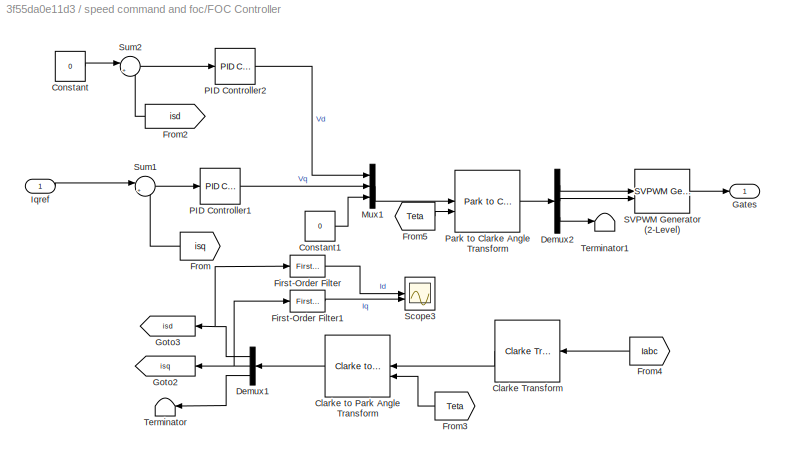
BLOCK [SubSystem] speed command and foc/FOC Controller
BLOCK [Reference] speed command and foc/FOC Controller/Clarke Transform  REF=eeTransforms/Clarke Transform
  SourceBlock = eeTransforms/Clarke Transform
  SourceType = Clarke Transform
BLOCK [Reference] speed command and foc/FOC Controller/Clarke to Park Angle Transform  REF=eeTransforms/Clarke to Park
Angle Transform
  SourceBlock = eeTransforms/Clarke to Park\nAngle Transform
  SourceType = Clarke to Park Angle Transform
BLOCK [Constant] speed command and foc/FOC Controller/Constant
  Value = 0
BLOCK [Constant] speed command and foc/FOC Controller/Constant1
  Value = 0
BLOCK [Demux] speed command and foc/FOC Controller/Demux1
  Outputs = 3
BLOCK [Demux] speed command and foc/FOC Controller/Demux2
  Outputs = 3
BLOCK [Reference] speed command and foc/FOC Controller/First-Order Filter  REF=spsFirstOrderFilterLib/First-Order
Filter
  SourceBlock = spsFirstOrderFilterLib/First-Order\nFilter
  SourceType = First-Order Filter
BLOCK [Reference] speed command and foc/FOC Controller/First-Order Filter1  REF=spsFirstOrderFilterLib/First-Order
Filter
  SourceBlock = spsFirstOrderFilterLib/First-Order\nFilter
  SourceType = First-Order Filter
BLOCK [From] speed command and foc/FOC Controller/From
  GotoTag = isq
  NameLocation = top
  TagVisibility = global
BLOCK [From] speed command and foc/FOC Controller/From2
  GotoTag = isd
  NameLocation = top
  TagVisibility = global
BLOCK [From] speed command and foc/FOC Controller/From3
  GotoTag = Teta
  TagVisibility = global
BLOCK [From] speed command and foc/FOC Controller/From4
  GotoTag = Iabc
  TagVisibility = global
BLOCK [From] speed command and foc/FOC Controller/From5
  GotoTag = Teta
  TagVisibility = global
BLOCK [Outport] speed command and foc/FOC Controller/Gates
  VectorParamsAs1DForOutWhenUnconnected = off
BLOCK [Goto] speed command and foc/FOC Controller/Goto2
  GotoTag = isq
  TagVisibility = global
BLOCK [Goto] speed command and foc/FOC Controller/Goto3
  GotoTag = isd
  TagVisibility = global
BLOCK [Inport] speed command and foc/FOC Controller/Iqref
BLOCK [Mux] speed command and foc/FOC Controller/Mux1
  DisplayOption = bar
  Inputs = 3
BLOCK [Reference] speed command and foc/FOC Controller/PID Controller1  REF=slpidlib/PID Controller
  SourceBlock = slpidlib/PID Controller
  SourceType = PID 1dof
BLOCK [Reference] speed command and foc/FOC Controller/PID Controller2  REF=slpidlib/PID Controller
  SourceBlock = slpidlib/PID Controller
  SourceType = PID 1dof
BLOCK [Reference] speed command and foc/FOC Controller/Park to Clarke Angle Transform  REF=eeTransforms/Park to Clarke
Angle Transform
  SourceBlock = eeTransforms/Park to Clarke\nAngle Transform
  SourceType = Park to Clarke Angle Transform
BLOCK [Reference] speed command and foc/FOC Controller/SVPWM Generator (2-Level)  REF=spsSVPWMGenerator2LevelLib/SVPWM Generator
(2-Level)
  LibrarySourceBlock = sps_lib/Power Electronics/Power Electronics Control/SVPWM Generator\n(2-Level)
  SourceBlock = spsSVPWMGenerator2LevelLib/SVPWM Generator\n(2-Level)
  SourceType = SVPWM Generator (2-Level)
BLOCK [Scope] speed command and foc/FOC Controller/Scope3
  Floating = off
  NumInputPorts = 2
  ScopeSpecificationString = Simulink.scopes.TimeScopeBlockCfg('CurrentConfiguration', extmgr.ConfigurationSet(extmgr.Configuration('Core','General UI',true,'FigureColor',[1 1 1]),extmgr.Configuration('Core','Source UI',true),extmgr.Configuration('Sources','WiredSimulink',true,'DataLoggingVariableName','ScopeData9','SampleTime','0.001'),extmgr.Configuration('Visuals','Time Domain',true,'SerializedDisplays',{struct('MinYLimRea...<+2587ch>
BLOCK [Sum] speed command and foc/FOC Controller/Sum1
  Inputs = |+-
BLOCK [Sum] speed command and foc/FOC Controller/Sum2
  Inputs = |+-
BLOCK [Terminator] speed command and foc/FOC Controller/Terminator
BLOCK [Terminator] speed command and foc/FOC Controller/Terminator1
BLOCK [Gain] speed command and foc/Gain
  Gain = 200
BLOCK [Outport] speed command and foc/Gates
  Port = 2
BLOCK [Goto] speed command and foc/Goto1
  GotoTag = Brake
  TagVisibility = global
BLOCK [Goto] speed command and foc/Goto7
  GotoTag = W_Ref
  TagVisibility = global
BLOCK [Inport] speed command and foc/In1
BLOCK [Outport] speed command and foc/Info
BLOCK [Reference] speed command and foc/Longitudinal Driver  REF=autolibshared/Longitudinal Driver
  LibrarySourceBlock = autolibscenario/Longitudinal Driver
  SourceBlock = autolibshared/Longitudinal Driver
  SourceType = Longitudinal Driver
BLOCK [UnitDelay] speed command and foc/Unit Delay
  HasFrameUpgradeWarning = on
  SampleTime = -1
BLOCK [Inport] speed command and foc/VelFdbk
  Port = 2
ANNOTATION (root): Transmission
LINE Battery1:1 -> Subsystem:1
NET Bus Selector:1 -> First-Order Filter:1, Mux:1
NET Bus Selector:2 -> First-Order Filter2:1, Mux:2
NET Bus Selector:3 -> First-Order Filter3:1, Mux:3
NET Bus Selector:4 -> Product:1, Terminator2:1
NET Bus Selector:5 -> First-Order Filter5:1, Goto1:1
LINE Bus Selector:6 -> Gain2:1
LINE Divide1:1 -> Gain1:1
LINE Divide:1 -> Gain:1
LINE Double Click to Change:1 -> Goto2:1
LINE Drive Cycle Source:1 -> speed command and foc:1
LINE First-Order Filter1:1 -> Scope7:1
LINE First-Order Filter2:1 -> Scope8:2
LINE First-Order Filter3:1 -> Scope8:3
LINE First-Order Filter4:1 -> Scope5:1
LINE First-Order Filter5:1 -> Product:2
NET First-Order Filter7:1 -> Mux3:1, Scope13:1
NET First-Order Filter8:1 -> Mux3:2, Scope13:2
NET First-Order Filter9:1 -> Mux3:3, Scope13:3
LINE First-Order Filter:1 -> Scope8:1
LINE Friction Braking:1 -> Double Click to Change:1
LINE From1:1 -> First-Order Filter1:1
LINE From2:1 -> Scope6:2
LINE From3:1 -> Scope3:1
LINE From4:1 -> Scope7:2
LINE From5:1 -> Scope6:1
LINE From:1 -> Universal Bridge:1
LINE Gain1:1 -> Saturation6:1
LINE Gain2:1 -> Goto5:1
LINE Gain:1 -> Saturation5:1
LINE Mux3:1 -> Goto3:1
LINE Mux:1 -> Unit Delay:1
LINE PS-Simulink Converter:1 -> Goto6:1
LINE Permanent Magnet Synchronous Machine:1 -> Bus Selector:1
NET Product:1 -> Saturation1:1, Saturation2:1, Scope2:1
LINE Regenerative Braking Control/AND:1 -> Regenerative Braking Control/Logical Operator1:1
LINE Regenerative Braking Control/From4:1 -> Regenerative Braking Control/AND:1
LINE Regenerative Braking Control/Logical Operator1:1 -> Regenerative Braking Control/Out1:1
LINE Regenerative Braking Control/Subsystem/Braking:1 -> Regenerative Braking Control/Subsystem/PWM Generator (DC-DC)1:1
NET Regenerative Braking Control/Subsystem/Constant1:1 -> Regenerative Braking Control/Subsystem/Mux:1, Regenerative Braking Control/Subsystem/Mux:3, Regenerative Braking Control/Subsystem/Mux:5
LINE Regenerative Braking Control/Subsystem/Constant:1 -> Regenerative Braking Control/Subsystem/Switch:1
LINE Regenerative Braking Control/Subsystem/From1:1 -> Regenerative Braking Control/Subsystem/Switch:2
LINE Regenerative Braking Control/Subsystem/Logical Operator2:1 -> Regenerative Braking Control/Subsystem/Out1:1
LINE Regenerative Braking Control/Subsystem/Logical Operator3:1 -> Regenerative Braking Control/Subsystem/Logical Operator2:2
LINE Regenerative Braking Control/Subsystem/Mux:1 -> Regenerative Braking Control/Subsystem/Logical Operator2:1
LINE Regenerative Braking Control/Subsystem/ON//OFF:1 -> Regenerative Braking Control/Subsystem/Logical Operator3:1
LINE Regenerative Braking Control/Subsystem/PWM Generator (DC-DC)1:1 -> Regenerative Braking Control/Subsystem/Switch:3
NET Regenerative Braking Control/Subsystem/Switch:1 -> Regenerative Braking Control/Subsystem/Mux:2, Regenerative Braking Control/Subsystem/Mux:4, Regenerative Braking Control/Subsystem/Mux:6
LINE Regenerative Braking Control/Subsystem1/Constant2:1 -> Regenerative Braking Control/Subsystem1/Switch1:1
LINE Regenerative Braking Control/Subsystem1/Constant5:1 -> Regenerative Braking Control/Subsystem1/Switch1:3
NET Regenerative Braking Control/Subsystem1/From4:1 -> Regenerative Braking Control/Subsystem1/Brake Control:1, Regenerative Braking Control/Subsystem1/Switch1:2
NET Regenerative Braking Control/Subsystem1/Switch1:1 -> Regenerative Braking Control/Subsystem1/Goto6:1, Regenerative Braking Control/Subsystem1/Motor ON//OFF:1
NET Regenerative Braking Control/Subsystem1:1 -> Regenerative Braking Control/AND:2, Regenerative Braking Control/Subsystem:1
LINE Regenerative Braking Control/Subsystem1:2 -> Regenerative Braking Control/Subsystem:2
LINE Regenerative Braking Control/Subsystem:1 -> Regenerative Braking Control/Logical Operator1:2
LINE Regenerative Braking Control:1 -> Goto7:1
LINE Regenerative Braking:1 -> Double Click to Change:2
LINE Saturation1:1 -> Divide:1
LINE Saturation2:1 -> Divide1:2
LINE Saturation3:1 -> Divide:2
LINE Saturation4:1 -> Divide1:1
LINE Saturation5:1 -> Scope11:1
LINE Saturation6:1 -> Scope12:1
LINE Saturation:1 -> First-Order Filter4:1
NET Subsystem/Bus Selector1:1 -> Subsystem/<SOC (%)>:1, Subsystem/Goto2:1, Subsystem/Goto3:1
LINE Subsystem/Bus Selector1:2 -> Subsystem/First-Order Filter:1
LINE Subsystem/Bus Selector1:3 -> Subsystem/First-Order Filter2:1
NET Subsystem/First-Order Filter2:1 -> Subsystem/Product:2, Subsystem/V:1
NET Subsystem/First-Order Filter:1 -> Subsystem/I:1, Subsystem/Product:1
LINE Subsystem/In1:1 -> Subsystem/Bus Selector1:1
LINE Subsystem/Product:1 -> Subsystem/Power:1
LINE Subsystem1/Discrete Derivative:1 -> Subsystem1/Gain1:1
LINE Subsystem1/Gain1:1 -> Subsystem1/Out1:1
LINE Subsystem1/velocity:1 -> Subsystem1/Discrete Derivative:1
LINE Subsystem1:1 -> Saturation:1
NET Subsystem5/Bus Selector1:1 -> Subsystem5/Goto3:1, Subsystem5/Scope:1
LINE Subsystem5/Bus Selector1:2 -> Subsystem5/Scope:2
LINE Subsystem5/Bus Selector1:3 -> Subsystem5/Scope2:1
LINE Subsystem5/Bus Selector1:4 -> Subsystem5/Scope2:2
LINE Subsystem5/Constant Current/From3:1 -> Subsystem5/Constant Current/Sum:2
LINE Subsystem5/Constant Current/In1:1 -> Subsystem5/Constant Current/Sum:1
LINE Subsystem5/Constant Current/PID Controller2:1 -> Subsystem5/Constant Current/PWM Generator (DC-DC):1
LINE Subsystem5/Constant Current/PWM Generator (DC-DC):1 -> Subsystem5/Constant Current/Out1:1
LINE Subsystem5/Constant Current/Sum:1 -> Subsystem5/Constant Current/PID Controller2:1
LINE Subsystem5/Constant Current:1 -> Subsystem5/Switch:3
LINE Subsystem5/Constant Voltage /Constant2:1 -> Subsystem5/Constant Voltage /Switch:3
LINE Subsystem5/Constant Voltage /Constant:1 -> Subsystem5/Constant Voltage /Switch:1
NET Subsystem5/Constant Voltage /From1:1 -> Subsystem5/Constant Voltage /Sample and Hold:1, Subsystem5/Constant Voltage /Switch1:3
LINE Subsystem5/Constant Voltage /From2:1 -> Subsystem5/Constant Voltage /Switch:2
LINE Subsystem5/Constant Voltage /From4:1 -> Subsystem5/Constant Voltage /Sum1:2
LINE Subsystem5/Constant Voltage /PID Controller1:1 -> Subsystem5/Constant Voltage /PWM Generator (DC-DC)1:1
LINE Subsystem5/Constant Voltage /PWM Generator (DC-DC)1:1 -> Subsystem5/Constant Voltage /Out1:1
LINE Subsystem5/Constant Voltage /Sample and Hold:1 -> Subsystem5/Constant Voltage /Switch1:1
LINE Subsystem5/Constant Voltage /Sum1:1 -> Subsystem5/Constant Voltage /PID Controller1:1
LINE Subsystem5/Constant Voltage /Switch1:1 -> Subsystem5/Constant Voltage /Sum1:1
NET Subsystem5/Constant Voltage /Switch:1 -> Subsystem5/Constant Voltage /Sample and Hold:trigger, Subsystem5/Constant Voltage /Switch1:2
LINE Subsystem5/Constant Voltage :1 -> Subsystem5/Switch:1
LINE Subsystem5/Constant2:1 -> Subsystem5/Switch3:1
LINE Subsystem5/Constant3:1 -> Subsystem5/No Charging Above 95% SoC:1
LINE Subsystem5/Constant4:1 -> Subsystem5/No Charging Above 95% SoC:3
LINE Subsystem5/Constant8:1 -> Subsystem5/Switch4:1
LINE Subsystem5/Current Measure 2:1 -> Subsystem5/First-Order Filter3:1
NET Subsystem5/First-Order Filter2:1 -> Subsystem5/Goto:1, Subsystem5/Scope1:2
NET Subsystem5/First-Order Filter3:1 -> Subsystem5/Goto1:1, Subsystem5/Scope1:1
LINE Subsystem5/From2:1 -> Subsystem5/S3:1
LINE Subsystem5/From5:1 -> Subsystem5/Switch:2
LINE Subsystem5/From6:1 -> Subsystem5/Switch3:2
LINE Subsystem5/From8:1 -> Subsystem5/No Charging Above 95% SoC:2
LINE Subsystem5/From:1 -> Subsystem5/Switch4:2
LINE Subsystem5/Fuel Cell Stack:1 -> Subsystem5/Bus Selector1:1
NET Subsystem5/No Charging Above 95% SoC:1 -> Subsystem5/Display:1, Subsystem5/S2:1
LINE Subsystem5/Reference Current:1 -> Subsystem5/Constant Current:1
LINE Subsystem5/Switch3:1 -> Subsystem5/Switch4:3
LINE Subsystem5/Switch4:1 -> Subsystem5/Goto2:1
LINE Subsystem5/Switch:1 -> Subsystem5/Switch3:3
LINE Subsystem5/Voltage Measurement:1 -> Subsystem5/First-Order Filter2:1
LINE Subsystem:1 -> Terminator3:1
LINE Subsystem:2 -> Scope9:1
LINE Subsystem:3 -> Scope10:1
NET Subsystem:4 -> Saturation3:1, Saturation4:1, Scope4:1
LINE Unit Delay2:1 -> speed command and foc:2
LINE Unit Delay:1 -> Goto4:1
LINE Vab1:1 -> First-Order Filter7:1
LINE Vbc:1 -> First-Order Filter8:1
LINE Vca:1 -> First-Order Filter9:1
NET Vehicle Model/Brake:1 -> Vehicle Model/Scope:1, Vehicle Model/Simulink-PS Converter:1
LINE Vehicle Model/Constant:1 -> Vehicle Model/Switch:3
LINE Vehicle Model/From1:1 -> Vehicle Model/Switch:2
LINE Vehicle Model/From:1 -> Vehicle Model/Switch:1
NET Vehicle Model/PS-Simulink Converter:1 -> Vehicle Model/Goto1:1, Vehicle Model/velocity:1
NET Vehicle Model/Switch:1 -> Vehicle Model/Brake:1, Vehicle Model/Display:1
NET Vehicle Model:1 -> Subsystem1:1, Unit Delay2:1
LINE speed command and foc/Constant:1 -> speed command and foc/Longitudinal Driver:3
LINE speed command and foc/FOC Controller/Clarke Transform:1 -> speed command and foc/FOC Controller/Clarke to Park Angle Transform:1
LINE speed command and foc/FOC Controller/Clarke to Park Angle Transform:1 -> speed command and foc/FOC Controller/Demux1:1
LINE speed command and foc/FOC Controller/Constant1:1 -> speed command and foc/FOC Controller/Mux1:3
LINE speed command and foc/FOC Controller/Constant:1 -> speed command and foc/FOC Controller/Sum2:1
NET speed command and foc/FOC Controller/Demux1:1 -> speed command and foc/FOC Controller/First-Order Filter:1, speed command and foc/FOC Controller/Goto3:1
NET speed command and foc/FOC Controller/Demux1:2 -> speed command and foc/FOC Controller/First-Order Filter1:1, speed command and foc/FOC Controller/Goto2:1
LINE speed command and foc/FOC Controller/Demux1:3 -> speed command and foc/FOC Controller/Terminator:1
LINE speed command and foc/FOC Controller/Demux2:1 -> speed command and foc/FOC Controller/SVPWM Generator (2-Level):1
LINE speed command and foc/FOC Controller/Demux2:2 -> speed command and foc/FOC Controller/SVPWM Generator (2-Level):2
LINE speed command and foc/FOC Controller/Demux2:3 -> speed command and foc/FOC Controller/Terminator1:1
LINE speed command and foc/FOC Controller/First-Order Filter1:1 -> speed command and foc/FOC Controller/Scope3:2
LINE speed command and foc/FOC Controller/First-Order Filter:1 -> speed command and foc/FOC Controller/Scope3:1
LINE speed command and foc/FOC Controller/From2:1 -> speed command and foc/FOC Controller/Sum2:2
LINE speed command and foc/FOC Controller/From3:1 -> speed command and foc/FOC Controller/Clarke to Park Angle Transform:2
LINE speed command and foc/FOC Controller/From4:1 -> speed command and foc/FOC Controller/Clarke Transform:1
LINE speed command and foc/FOC Controller/From5:1 -> speed command and foc/FOC Controller/Park to Clarke Angle Transform:2
LINE speed command and foc/FOC Controller/From:1 -> speed command and foc/FOC Controller/Sum1:2
LINE speed command and foc/FOC Controller/Iqref:1 -> speed command and foc/FOC Controller/Sum1:1
LINE speed command and foc/FOC Controller/Mux1:1 -> speed command and foc/FOC Controller/Park to Clarke Angle Transform:1
LINE speed command and foc/FOC Controller/PID Controller1:1 -> speed command and foc/FOC Controller/Mux1:2
LINE speed command and foc/FOC Controller/PID Controller2:1 -> speed command and foc/FOC Controller/Mux1:1
LINE speed command and foc/FOC Controller/Park to Clarke Angle Transform:1 -> speed command and foc/FOC Controller/Demux2:1
LINE speed command and foc/FOC Controller/SVPWM Generator (2-Level):1 -> speed command and foc/FOC Controller/Gates:1
LINE speed command and foc/FOC Controller/Sum1:1 -> speed command and foc/FOC Controller/PID Controller1:1
LINE speed command and foc/FOC Controller/Sum2:1 -> speed command and foc/FOC Controller/PID Controller2:1
LINE speed command and foc/FOC Controller:1 -> speed command and foc/Gates:1
LINE speed command and foc/Gain:1 -> speed command and foc/FOC Controller:1
NET speed command and foc/In1:1 -> speed command and foc/Goto7:1, speed command and foc/Longitudinal Driver:1
LINE speed command and foc/Longitudinal Driver:1 -> speed command and foc/Info:1
LINE speed command and foc/Longitudinal Driver:2 -> speed command and foc/Gain:1
LINE speed command and foc/Longitudinal Driver:3 -> speed command and foc/Unit Delay:1
LINE speed command and foc/Unit Delay:1 -> speed command and foc/Goto1:1
LINE speed command and foc/VelFdbk:1 -> speed command and foc/Longitudinal Driver:2
LINE speed command and foc:1 -> Terminator1:1
LINE speed command and foc:2 -> Goto:1
PNET net1: Battery1:LConn1 -- Subsystem5:RConn1 -- Universal Bridge:RConn1
PNET net2: Battery1:LConn2 -- Subsystem5:RConn2 -- Universal Bridge:RConn2
PNET net3: Ideal Torque Sensor:LConn1 -- Permanent Magnet Synchronous Machine:LConn1 -- Solver Configuration2:RConn1
PNET net4: Ideal Torque Sensor:RConn1 -- Inertia:LConn1 -- Simple Gear:LConn1
PLINE Ideal Torque Sensor:RConn2 -- PS-Simulink Converter:LConn1
PNET net5: Inertia1:LConn1 -- Simple Gear:RConn1 -- Vehicle Model:LConn1
PNET net6: Permanent Magnet Synchronous Machine:LConn2 -- Universal Bridge:LConn1 -- Vab1:LConn1 -- Vca:LConn2
PNET net7: Permanent Magnet Synchronous Machine:LConn3 -- Universal Bridge:LConn2 -- Vab1:LConn2 -- Vbc:LConn1
PNET net8: Permanent Magnet Synchronous Machine:LConn4 -- Universal Bridge:LConn3 -- Vbc:LConn2 -- Vca:LConn1
PNET net9: Subsystem5/Current Measure 2:LConn1 -- Subsystem5/Diode1:RConn1 -- Subsystem5/L1:LConn1 -- Subsystem5/Voltage Measurement:LConn1
PLINE Subsystem5/Current Measure 2:RConn1 -- Subsystem5/S2:LConn1
PNET net10: Subsystem5/Diode1:LConn1 -- Subsystem5/L2:RConn1 -- Subsystem5/S3:LConn1
PLINE Subsystem5/Diode:LConn1 -- Subsystem5/Fuel Cell Stack:RConn1
PLINE Subsystem5/Diode:RConn1 -- Subsystem5/L2:LConn1
PLINE Subsystem5/E:RConn1 -- Subsystem5/S2:RConn1
PNET net11: Subsystem5/Fuel Cell Stack:RConn2 -- Subsystem5/L1:RConn1 -- Subsystem5/S3:RConn1 -- Subsystem5/Voltage Measurement:LConn2 -- Subsystem5/a:RConn1
PLINE Vehicle Model/Double-Shoe Brake:LConn1 -- Vehicle Model/Simulink-PS Converter:RConn1
PNET net12: Vehicle Model/Double-Shoe Brake:LConn2 -- Vehicle Model/Left Rear:LConn2 -- Vehicle Model/Right Rear:LConn2 -- Vehicle Model/mech port:RConn1
PLINE Vehicle Model/Inclination:RConn1 -- Vehicle Model/Vehicle Body:RConn3
PNET net13: Vehicle Model/Left Front:LConn1 -- Vehicle Model/Right Front:LConn1 -- Vehicle Model/Vehicle Body:RConn2
PLINE Vehicle Model/Left Front:LConn2 -- Vehicle Model/Rotational Free End:LConn1
PLINE Vehicle Model/Left Front:RConn1 -- Vehicle Model/PS Terminator2:LConn1
PNET net14: Vehicle Model/Left Front:RConn2 -- Vehicle Model/Left Rear:RConn2 -- Vehicle Model/Right Front:RConn2 -- Vehicle Model/Right Rear:RConn2 -- Vehicle Model/Vehicle Body:LConn1
PNET net15: Vehicle Model/Left Rear:LConn1 -- Vehicle Model/Right Rear:LConn1 -- Vehicle Model/Vehicle Body:RConn1
PLINE Vehicle Model/Left Rear:RConn1 -- Vehicle Model/PS Terminator:LConn1
PLINE Vehicle Model/PS Terminator1:LConn1 -- Vehicle Model/Right Rear:RConn1
PLINE Vehicle Model/PS Terminator3:LConn1 -- Vehicle Model/Right Front:RConn1
PLINE Vehicle Model/PS-Simulink Converter:LConn1 -- Vehicle Model/Vehicle Body:LConn2
PLINE Vehicle Model/Right Front:LConn2 -- Vehicle Model/Rotational Free End1:LConn1
PLINE Vehicle Model/Vehicle Body:LConn3 -- Vehicle Model/Wind Velocity:RConn1
note: NET lines group one-source signal fan-out (src -> all destinations, sorted); 1:1 wires keep LINE; PNET lines group multi-terminal physical nets as a canonical sorted terminal list (undirected conserving connections); 2-terminal nets keep the pairwise PLINE form
